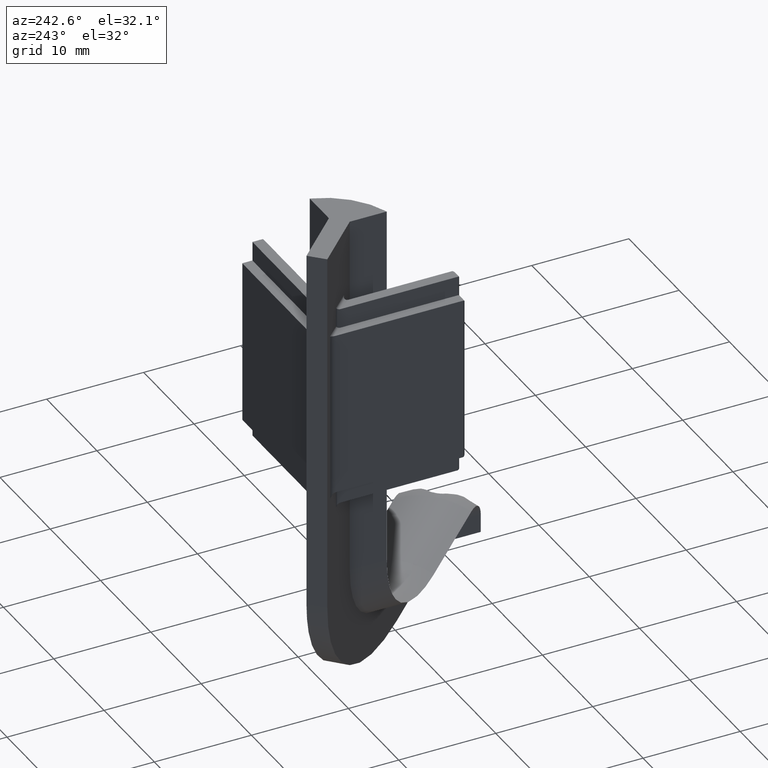
[diagram: clean part render]
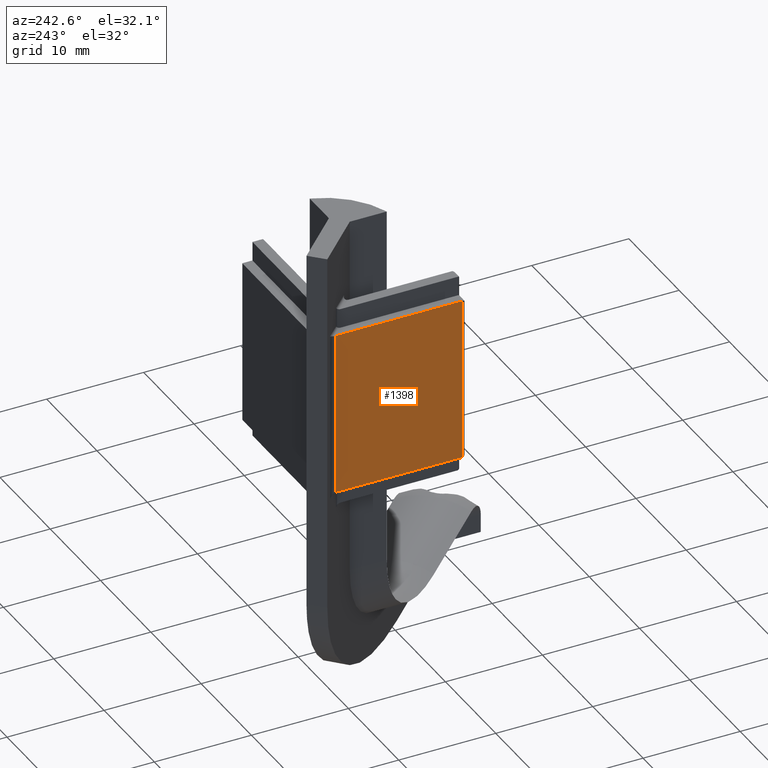
[diagram: same view with one face highlighted and labeled with its STEP entity id]
A machine part, auxiliary view. The second image highlights one B-rep face of the part: STEP entity #1398.
In plain terms, the highlighted planar face has unit normal (-1, 0, -0).
Its self-contained STEP definition (entity closure, byte-faithful):
#31=ELLIPSE('',#1500,0.424264068711928,0.3);
#35=ELLIPSE('',#1507,0.424264068711929,0.3);
#190=FACE_OUTER_BOUND('',#272,.T.);
#272=EDGE_LOOP('',(#1185,#1186,#1187,#1188,#1189,#1190));
#387=LINE('',#2457,#507);
#398=LINE('',#2480,#518);
#414=LINE('',#2535,#534);
#419=LINE('',#2552,#539);
#507=VECTOR('',#1808,10.);
#518=VECTOR('',#1831,10.);
#534=VECTOR('',#1897,10.);
#539=VECTOR('',#1920,10.);
#627=VERTEX_POINT('',#2379);
#631=VERTEX_POINT('',#2394);
#637=VERTEX_POINT('',#2412);
#638=VERTEX_POINT('',#2413);
#651=VERTEX_POINT('',#2455);
#657=VERTEX_POINT('',#2479);
#786=EDGE_CURVE('',#627,#631,#31,.F.);
#794=EDGE_CURVE('',#637,#638,#35,.T.);
#813=EDGE_CURVE('',#651,#631,#387,.T.);
#824=EDGE_CURVE('',#657,#638,#398,.T.);
#852=EDGE_CURVE('',#657,#651,#414,.T.);
#861=EDGE_CURVE('',#627,#637,#419,.T.);
#1185=ORIENTED_EDGE('',*,*,#852,.F.);
#1186=ORIENTED_EDGE('',*,*,#824,.T.);
#1187=ORIENTED_EDGE('',*,*,#794,.F.);
#1188=ORIENTED_EDGE('',*,*,#861,.F.);
#1189=ORIENTED_EDGE('',*,*,#786,.T.);
#1190=ORIENTED_EDGE('',*,*,#813,.F.);
#1326=PLANE('',#1558);
#1398=ADVANCED_FACE('',(#190),#1326,.T.);
#1500=AXIS2_PLACEMENT_3D('',#2396,#1756,#1757);
#1507=AXIS2_PLACEMENT_3D('',#2414,#1774,#1775);
#1558=AXIS2_PLACEMENT_3D('',#2551,#1918,#1919);
#1756=DIRECTION('center_axis',(-1.,0.,-1.63504245572673E-16));
#1757=DIRECTION('ref_axis',(5.78241158658923E-17,1.,8.177564888978E-16));
#1774=DIRECTION('center_axis',(-1.,0.,-1.63504245572673E-16));
#1775=DIRECTION('ref_axis',(7.53550428484099E-31,1.,4.9065389333868E-16));
#1808=DIRECTION('',(0.,1.,0.));
#1831=DIRECTION('',(0.,1.,0.));
#1897=DIRECTION('',(1.63504245572673E-16,0.,-1.));
#1918=DIRECTION('center_axis',(-1.,0.,-1.63504245572673E-16));
#1919=DIRECTION('ref_axis',(-1.63504245572673E-16,0.,1.));
#1920=DIRECTION('',(-1.63504245572673E-16,1.07993094341415E-16,1.));
#2379=CARTESIAN_POINT('',(-4.00000000000001,53.4041630560343,-8.45008418904436));
#2394=CARTESIAN_POINT('',(-4.00000000000001,53.3941125496954,-8.44999999999998));
#2396=CARTESIAN_POINT('Origin',(-4.00000000000001,53.3941125496954,-8.74999999999998));
#2412=CARTESIAN_POINT('',(-4.00000000000001,53.4041630560343,8.4500841890444));
#2413=CARTESIAN_POINT('',(-4.00000000000001,53.3941125496954,8.45000000000002));
#2414=CARTESIAN_POINT('Origin',(-4.00000000000001,53.3941125496954,8.75000000000002));
#2455=CARTESIAN_POINT('',(-4.00000000000001,40.3,-8.44999999999998));
#2457=CARTESIAN_POINT('',(-4.00000000000001,-50.,-8.44999999999998));
#2479=CARTESIAN_POINT('',(-4.00000000000001,40.3,8.45000000000002));
#2480=CARTESIAN_POINT('',(-4.00000000000001,-50.,8.45000000000002));
#2535=CARTESIAN_POINT('',(-4.00000000000001,40.3,4.22500000000002));
#2551=CARTESIAN_POINT('Origin',(-4.00000000000001,-50.,8.45000000000002));
#2552=CARTESIAN_POINT('',(-4.00000000000001,53.4041630560343,24.0214771252611));